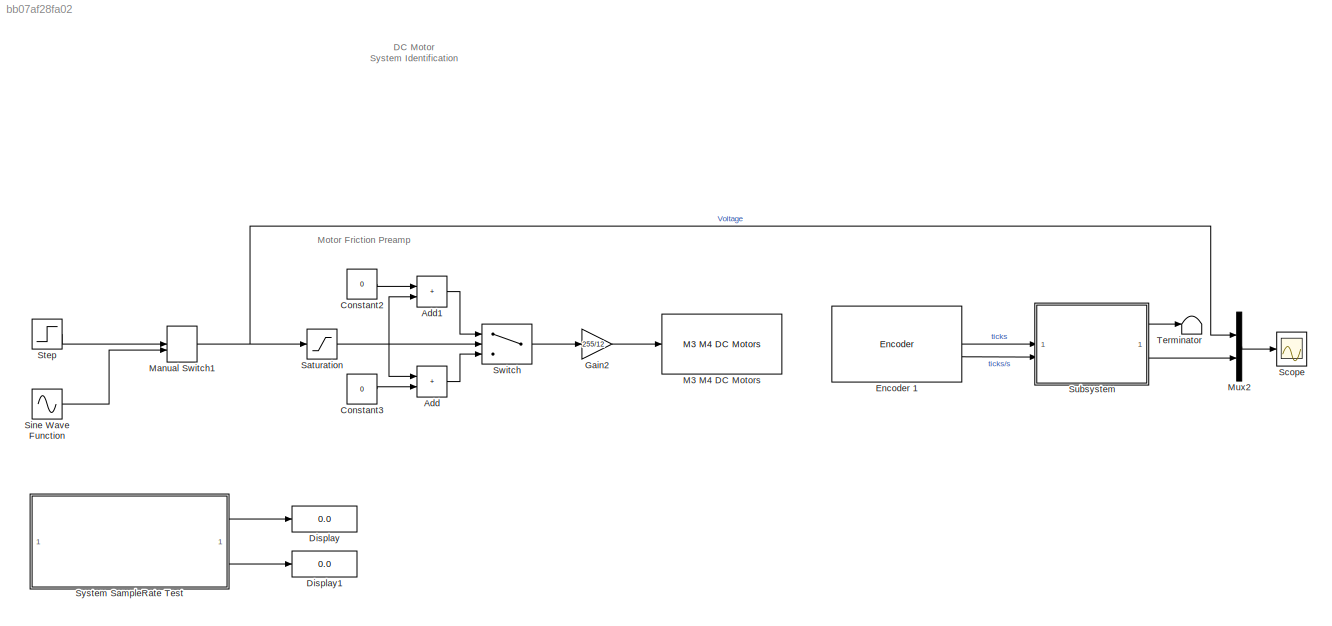
MODEL slx_bb07af28fa02
KIND model
CONFIG AbsTol = auto
CONFIG EnableMultiTasking = on
CONFIG FixedStep = auto
CONFIG MaxStep = auto
CONFIG MinStep = auto
CONFIG RelTol = 1e-3
CONFIG SampleTimeConstraint = Unconstrained
CONFIG SolverName = FixedStepAuto
CONFIG StartTime = 0.0
CONFIG StopTime = 2
WORKSPACE source: mxarray member
WORKSPACE sampleRate = 0.005
BLOCK [Sum] Add
  IconShape = rectangular
BLOCK [Sum] Add1
  IconShape = rectangular
BLOCK [Constant] Constant2
  SampleTime = sampleRate
  Value = 0
BLOCK [Constant] Constant3
  SampleTime = sampleRate
  Value = 0
BLOCK [Display] Display
  Decimation = 1
BLOCK [Display] Display1
  Decimation = 1
BLOCK [Reference] Encoder 1  REF=arduinomotorcarrierlib/Encoder
  SourceBlock = arduinomotorcarrierlib/Encoder
  SourceType = motorcarrier.blocks.mkrmotorcarrier_Encoder
BLOCK [Gain] Gain2
  Gain = 255/12
BLOCK [Reference] M3 M4 DC Motors  REF=arduinomotorcarrierlib/M3 M4 DC Motors
  SourceBlock = arduinomotorcarrierlib/M3 M4 DC Motors
  SourceType = DC Motor
BLOCK [ManualSwitch] Manual Switch1
BLOCK [Mux] Mux2
  DisplayOption = bar
  Inputs = 2
BLOCK [Saturate] Saturation
  LowerLimit = -12
  UpperLimit = 12
BLOCK [Scope] Scope
  Floating = off
  NumInputPorts = 1
  ScopeSpecificationString = Simulink.scopes.TimeScopeBlockCfg('CurrentConfiguration', extmgr.ConfigurationSet(extmgr.Configuration('Core','General UI',true),extmgr.Configuration('Core','Source UI',true),extmgr.Configuration('Sources','WiredSimulink',true,'DataLogging',true,'DataLoggingSaveFormat','StructureWithTime'),extmgr.Configuration('Visuals','Time Domain',true,'SerializedDisplays',{struct('MinYLimReal','-0.16656','MaxY...<+1670ch>
BLOCK [Sin] Sine Wave Function
  Amplitude = 7
  SampleTime = sampleRate
BLOCK [Step] Step
  After = 7
  SampleTime = sampleRate
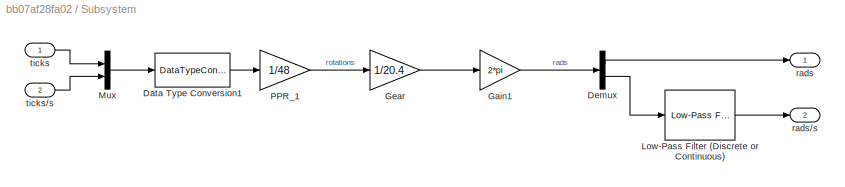
BLOCK [SubSystem] Subsystem
BLOCK [DataTypeConversion] Subsystem/Data Type Conversion1
  OutDataTypeStr = double
  RndMeth = Floor
  SaturateOnIntegerOverflow = off
BLOCK [Demux] Subsystem/Demux
  Outputs = 2
BLOCK [Gain] Subsystem/Gain1
  Gain = 2*pi
BLOCK [Gain] Subsystem/Gear
  Gain = 1/20.4
BLOCK [Reference] Subsystem/Low-Pass Filter (Discrete or Continuous)  REF=eeGeneralControl/Low-Pass Filter
(Discrete or Continuous)
  LibrarySourceBlock = ee_sl_lib/General Control/Low-Pass Filter\n(Discrete or Continuous)
  SourceBlock = eeGeneralControl/Low-Pass Filter\n(Discrete or Continuous)
  SourceType = Low-Pass Filter (Discrete or Continuous)
BLOCK [Mux] Subsystem/Mux
  DisplayOption = bar
  Inputs = 2
BLOCK [Gain] Subsystem/PPR_1
  Gain = 1/48
BLOCK [Outport] Subsystem/rads
BLOCK [Outport] Subsystem/rads//s
  Port = 2
BLOCK [Inport] Subsystem/ticks
BLOCK [Inport] Subsystem/ticks//s
  Port = 2
BLOCK [Switch] Switch
  Criteria = u2 > Threshold
  InputSameDT = off
  SaturateOnIntegerOverflow = off
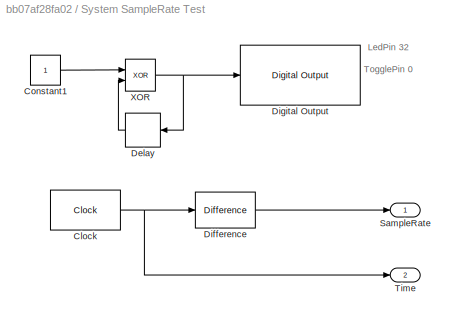
BLOCK [SubSystem] System SampleRate Test
BLOCK [Clock] System SampleRate Test/Clock
  Decimation = 3
  DisplayTime = on
BLOCK [Constant] System SampleRate Test/Constant1
  SampleTime = sampleRate
BLOCK [Delay] System SampleRate Test/Delay
  DelayLength = 1
  InitialCondition = 0
  InputPortMap = u0
  SampleTime = sampleRate
BLOCK [Reference] System SampleRate Test/Difference  REF=simulink/Quick Insert/Discrete/Difference
  SourceBlock = simulink/Quick Insert/Discrete/Difference
  SourceType = Difference
BLOCK [Reference] System SampleRate Test/Digital Output  REF=arduinolib/Digital Output
  SourceBlock = arduinolib/Digital Output
  SourceType = Arduino Digital Output
BLOCK [Outport] System SampleRate Test/SampleRate
BLOCK [Outport] System SampleRate Test/Time
  Port = 2
BLOCK [Logic] System SampleRate Test/XOR
  AllPortsSameDT = off
  IconShape = distinctive
  Operator = XOR
  OutDataTypeStr = boolean
BLOCK [Terminator] Terminator
ANNOTATION (root): DC Motor System Identification
ANNOTATION (root): Motor Friction Preamp
ANNOTATION System SampleRate Test: LedPin 32
ANNOTATION System SampleRate Test: TogglePin 0
LINE Add1:1 -> Switch:1
LINE Add:1 -> Switch:3
LINE Constant2:1 -> Add1:1
LINE Constant3:1 -> Add:2
LINE Encoder 1:1 -> Subsystem:1
LINE Encoder 1:2 -> Subsystem:2
LINE Gain2:1 -> M3 M4 DC Motors:1
NET Manual Switch1:1 -> Mux2:1, Saturation:1
LINE Mux2:1 -> Scope:1
NET Saturation:1 -> Add1:2, Add:1, Switch:2
LINE Sine Wave Function:1 -> Manual Switch1:2
LINE Step:1 -> Manual Switch1:1
LINE Subsystem/Data Type Conversion1:1 -> Subsystem/PPR_1:1
LINE Subsystem/Demux:1 -> Subsystem/rads:1
LINE Subsystem/Demux:2 -> Subsystem/Low-Pass Filter (Discrete or Continuous):1
LINE Subsystem/Gain1:1 -> Subsystem/Demux:1
LINE Subsystem/Gear:1 -> Subsystem/Gain1:1
LINE Subsystem/Low-Pass Filter (Discrete or Continuous):1 -> Subsystem/rads//s:1
LINE Subsystem/Mux:1 -> Subsystem/Data Type Conversion1:1
LINE Subsystem/PPR_1:1 -> Subsystem/Gear:1
LINE Subsystem/ticks//s:1 -> Subsystem/Mux:2
LINE Subsystem/ticks:1 -> Subsystem/Mux:1
LINE Subsystem:1 -> Terminator:1
LINE Subsystem:2 -> Mux2:2
LINE Switch:1 -> Gain2:1
NET System SampleRate Test/Clock:1 -> System SampleRate Test/Difference:1, System SampleRate Test/Time:1
LINE System SampleRate Test/Constant1:1 -> System SampleRate Test/XOR:1
LINE System SampleRate Test/Delay:1 -> System SampleRate Test/XOR:2
LINE System SampleRate Test/Difference:1 -> System SampleRate Test/SampleRate:1
NET System SampleRate Test/XOR:1 -> System SampleRate Test/Delay:1, System SampleRate Test/Digital Output:1
LINE System SampleRate Test:1 -> Display:1
LINE System SampleRate Test:2 -> Display1:1
note: NET lines group one-source signal fan-out (src -> all destinations, sorted); 1:1 wires keep LINE
